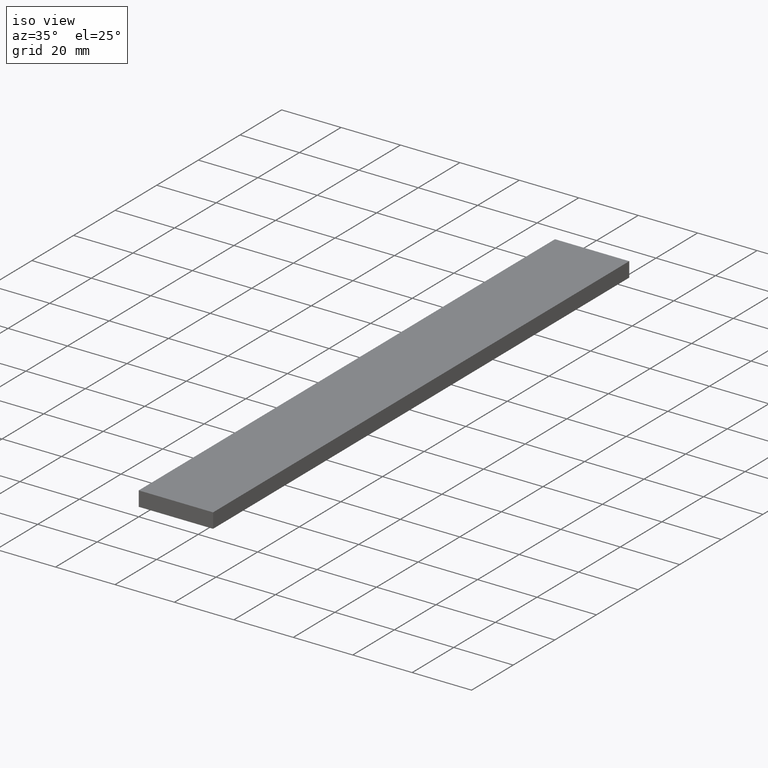
[diagram: clean part render]
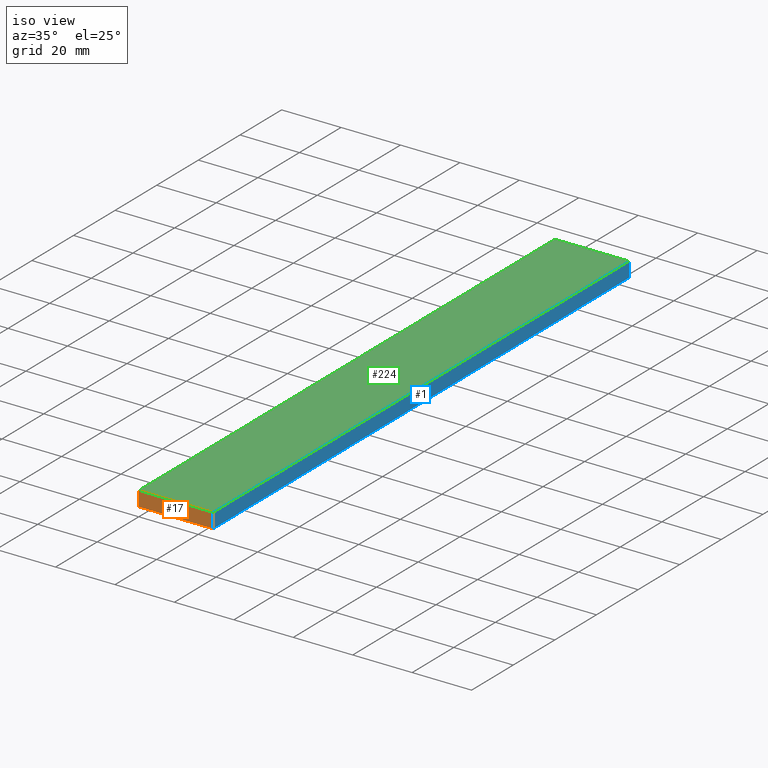
[diagram: same view with three faces highlighted in distinct colors, each labeled with its STEP entity id]
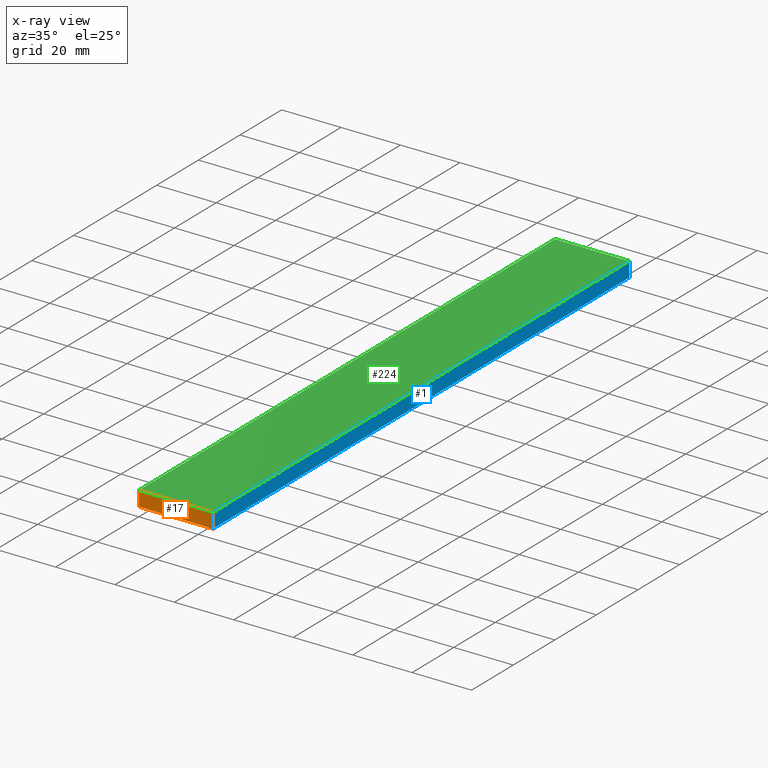
[diagram: x-ray of the same camera — body ghosted, the three highlighted faces saturated]
A machine part, iso view with three faces highlighted in distinct colors.
The next image is the same camera in x-ray (body ghosted, the three faces saturated) — at least one of them is partly hidden behind the body in this view.
Their STEP definitions:

[orange] entity #17 — the highlighted planar face has unit normal (0, 1, 0).
#3 = AXIS2_PLACEMENT_3D ( 'NONE', #53, #66, #193 ) ;
#4 = CARTESIAN_POINT ( 'NONE',  ( 0.0000000000000000000, 0.0000000000000000000, 0.0000000000000000000 ) ) ;
#9 = CARTESIAN_POINT ( 'NONE',  ( 25.00000000000000000, 0.0000000000000000000, 0.0000000000000000000 ) ) ;
#12 = ORIENTED_EDGE ( 'NONE', *, *, #167, .T. ) ;
#13 = PLANE ( 'NONE',  #3 ) ;
#17 = ADVANCED_FACE ( 'NONE', ( #237 ), #13, .F. ) ;
#28 = LINE ( 'NONE', #4, #216 ) ;
#41 = EDGE_CURVE ( 'NONE', #60, #203, #47, .T. ) ;
#47 = LINE ( 'NONE', #176, #144 ) ;
#48 = CARTESIAN_POINT ( 'NONE',  ( 0.0000000000000000000, 0.0000000000000000000, 5.000000000000000000 ) ) ;
#53 = CARTESIAN_POINT ( 'NONE',  ( 0.0000000000000000000, 0.0000000000000000000, 0.0000000000000000000 ) ) ;
#60 = VERTEX_POINT ( 'NONE', #183 ) ;
#66 = DIRECTION ( 'NONE',  ( -0.0000000000000000000, 1.000000000000000000, 0.0000000000000000000 ) ) ;
#76 = VECTOR ( 'NONE', #112, 1000.000000000000000 ) ;
#83 = DIRECTION ( 'NONE',  ( -0.0000000000000000000, -0.0000000000000000000, 1.000000000000000000 ) ) ;
#94 = VECTOR ( 'NONE', #83, 1000.000000000000000 ) ;
#98 = VERTEX_POINT ( 'NONE', #9 ) ;
#107 = ORIENTED_EDGE ( 'NONE', *, *, #178, .T. ) ;
#111 = ORIENTED_EDGE ( 'NONE', *, *, #155, .T. ) ;
#112 = DIRECTION ( 'NONE',  ( -1.000000000000000000, -0.0000000000000000000, -0.0000000000000000000 ) ) ;
#117 = EDGE_LOOP ( 'NONE', ( #111, #107, #12, #127 ) ) ;
#127 = ORIENTED_EDGE ( 'NONE', *, *, #41, .T. ) ;
#128 = DIRECTION ( 'NONE',  ( -0.0000000000000000000, -0.0000000000000000000, -1.000000000000000000 ) ) ;
#130 = CARTESIAN_POINT ( 'NONE',  ( 25.00000000000000000, 0.0000000000000000000, 0.0000000000000000000 ) ) ;
#136 = CARTESIAN_POINT ( 'NONE',  ( 25.00000000000000000, 0.0000000000000000000, 5.000000000000000000 ) ) ;
#144 = VECTOR ( 'NONE', #128, 1000.000000000000000 ) ;
#155 = EDGE_CURVE ( 'NONE', #203, #98, #28, .T. ) ;
#161 = CARTESIAN_POINT ( 'NONE',  ( 0.0000000000000000000, 0.0000000000000000000, 0.0000000000000000000 ) ) ;
#167 = EDGE_CURVE ( 'NONE', #228, #60, #221, .T. ) ;
#173 = LINE ( 'NONE', #130, #94 ) ;
#176 = CARTESIAN_POINT ( 'NONE',  ( 0.0000000000000000000, 0.0000000000000000000, 0.0000000000000000000 ) ) ;
#178 = EDGE_CURVE ( 'NONE', #98, #228, #173, .T. ) ;
#183 = CARTESIAN_POINT ( 'NONE',  ( 0.0000000000000000000, 0.0000000000000000000, 5.000000000000000000 ) ) ;
#193 = DIRECTION ( 'NONE',  ( 1.000000000000000000, 0.0000000000000000000, 0.0000000000000000000 ) ) ;
#203 = VERTEX_POINT ( 'NONE', #161 ) ;
#216 = VECTOR ( 'NONE', #230, 1000.000000000000000 ) ;
#221 = LINE ( 'NONE', #48, #76 ) ;
#228 = VERTEX_POINT ( 'NONE', #136 ) ;
#230 = DIRECTION ( 'NONE',  ( 1.000000000000000000, -0.0000000000000000000, -0.0000000000000000000 ) ) ;
#237 = FACE_OUTER_BOUND ( 'NONE', #117, .T. ) ;

[blue] entity #1 — the highlighted planar face has unit normal (1, 0, 0).
#1 = ADVANCED_FACE ( 'NONE', ( #101 ), #121, .T. ) ;
#2 = CARTESIAN_POINT ( 'NONE',  ( 25.00000000000000000, 200.0000000000000000, 0.0000000000000000000 ) ) ;
#5 = ORIENTED_EDGE ( 'NONE', *, *, #182, .T. ) ;
#8 = ORIENTED_EDGE ( 'NONE', *, *, #178, .F. ) ;
#9 = CARTESIAN_POINT ( 'NONE',  ( 25.00000000000000000, 0.0000000000000000000, 0.0000000000000000000 ) ) ;
#11 = DIRECTION ( 'NONE',  ( -0.0000000000000000000, -0.0000000000000000000, 1.000000000000000000 ) ) ;
#29 = EDGE_CURVE ( 'NONE', #218, #98, #231, .T. ) ;
#32 = ORIENTED_EDGE ( 'NONE', *, *, #29, .F. ) ;
#35 = VECTOR ( 'NONE', #11, 1000.000000000000000 ) ;
#54 = LINE ( 'NONE', #209, #35 ) ;
#64 = CARTESIAN_POINT ( 'NONE',  ( 25.00000000000000000, 1000.000000000000000, 0.0000000000000000000 ) ) ;
#65 = EDGE_CURVE ( 'NONE', #218, #142, #54, .T. ) ;
#69 = DIRECTION ( 'NONE',  ( 0.0000000000000000000, -1.000000000000000000, 0.0000000000000000000 ) ) ;
#71 = VECTOR ( 'NONE', #174, 1000.000000000000000 ) ;
#77 = EDGE_LOOP ( 'NONE', ( #8, #32, #238, #5 ) ) ;
#83 = DIRECTION ( 'NONE',  ( -0.0000000000000000000, -0.0000000000000000000, 1.000000000000000000 ) ) ;
#91 = CARTESIAN_POINT ( 'NONE',  ( 25.00000000000000000, 1000.000000000000000, 0.0000000000000000000 ) ) ;
#94 = VECTOR ( 'NONE', #83, 1000.000000000000000 ) ;
#98 = VERTEX_POINT ( 'NONE', #9 ) ;
#101 = FACE_OUTER_BOUND ( 'NONE', #77, .T. ) ;
#103 = CARTESIAN_POINT ( 'NONE',  ( 25.00000000000000000, 200.0000000000000000, 5.000000000000000000 ) ) ;
#121 = PLANE ( 'NONE',  #163 ) ;
#130 = CARTESIAN_POINT ( 'NONE',  ( 25.00000000000000000, 0.0000000000000000000, 0.0000000000000000000 ) ) ;
#136 = CARTESIAN_POINT ( 'NONE',  ( 25.00000000000000000, 0.0000000000000000000, 5.000000000000000000 ) ) ;
#141 = LINE ( 'NONE', #157, #71 ) ;
#142 = VERTEX_POINT ( 'NONE', #103 ) ;
#145 = DIRECTION ( 'NONE',  ( 0.0000000000000000000, 0.0000000000000000000, -1.000000000000000000 ) ) ;
#157 = CARTESIAN_POINT ( 'NONE',  ( 25.00000000000000000, 1000.000000000000000, 5.000000000000000000 ) ) ;
#163 = AXIS2_PLACEMENT_3D ( 'NONE', #64, #229, #145 ) ;
#173 = LINE ( 'NONE', #130, #94 ) ;
#174 = DIRECTION ( 'NONE',  ( 0.0000000000000000000, -1.000000000000000000, 0.0000000000000000000 ) ) ;
#178 = EDGE_CURVE ( 'NONE', #98, #228, #173, .T. ) ;
#182 = EDGE_CURVE ( 'NONE', #142, #228, #141, .T. ) ;
#209 = CARTESIAN_POINT ( 'NONE',  ( 25.00000000000000000, 200.0000000000000000, 0.0000000000000000000 ) ) ;
#218 = VERTEX_POINT ( 'NONE', #2 ) ;
#228 = VERTEX_POINT ( 'NONE', #136 ) ;
#229 = DIRECTION ( 'NONE',  ( 1.000000000000000000, 0.0000000000000000000, 0.0000000000000000000 ) ) ;
#231 = LINE ( 'NONE', #91, #235 ) ;
#235 = VECTOR ( 'NONE', #69, 1000.000000000000000 ) ;
#238 = ORIENTED_EDGE ( 'NONE', *, *, #65, .T. ) ;

[green] entity #224 — the highlighted planar face has unit normal (0, 0, 1).
#21 = ORIENTED_EDGE ( 'NONE', *, *, #167, .F. ) ;
#34 = CARTESIAN_POINT ( 'NONE',  ( 0.0000000000000000000, 200.0000000000000000, 5.000000000000000000 ) ) ;
#40 = VECTOR ( 'NONE', #106, 1000.000000000000000 ) ;
#43 = ORIENTED_EDGE ( 'NONE', *, *, #120, .T. ) ;
#44 = EDGE_CURVE ( 'NONE', #213, #60, #188, .T. ) ;
#48 = CARTESIAN_POINT ( 'NONE',  ( 0.0000000000000000000, 0.0000000000000000000, 5.000000000000000000 ) ) ;
#56 = DIRECTION ( 'NONE',  ( 1.000000000000000000, 0.0000000000000000000, 0.0000000000000000000 ) ) ;
#60 = VERTEX_POINT ( 'NONE', #183 ) ;
#71 = VECTOR ( 'NONE', #174, 1000.000000000000000 ) ;
#72 = ORIENTED_EDGE ( 'NONE', *, *, #182, .F. ) ;
#76 = VECTOR ( 'NONE', #112, 1000.000000000000000 ) ;
#86 = EDGE_LOOP ( 'NONE', ( #21, #72, #43, #186 ) ) ;
#103 = CARTESIAN_POINT ( 'NONE',  ( 25.00000000000000000, 200.0000000000000000, 5.000000000000000000 ) ) ;
#104 = CARTESIAN_POINT ( 'NONE',  ( 25.00000000000000000, 1000.000000000000000, 5.000000000000000000 ) ) ;
#106 = DIRECTION ( 'NONE',  ( 0.0000000000000000000, -1.000000000000000000, 0.0000000000000000000 ) ) ;
#110 = AXIS2_PLACEMENT_3D ( 'NONE', #104, #148, #56 ) ;
#112 = DIRECTION ( 'NONE',  ( -1.000000000000000000, -0.0000000000000000000, -0.0000000000000000000 ) ) ;
#115 = CARTESIAN_POINT ( 'NONE',  ( 0.0000000000000000000, 200.0000000000000000, 5.000000000000000000 ) ) ;
#120 = EDGE_CURVE ( 'NONE', #142, #213, #139, .T. ) ;
#129 = VECTOR ( 'NONE', #170, 1000.000000000000000 ) ;
#136 = CARTESIAN_POINT ( 'NONE',  ( 25.00000000000000000, 0.0000000000000000000, 5.000000000000000000 ) ) ;
#137 = FACE_OUTER_BOUND ( 'NONE', #86, .T. ) ;
#139 = LINE ( 'NONE', #115, #129 ) ;
#141 = LINE ( 'NONE', #157, #71 ) ;
#142 = VERTEX_POINT ( 'NONE', #103 ) ;
#148 = DIRECTION ( 'NONE',  ( 0.0000000000000000000, 0.0000000000000000000, 1.000000000000000000 ) ) ;
#157 = CARTESIAN_POINT ( 'NONE',  ( 25.00000000000000000, 1000.000000000000000, 5.000000000000000000 ) ) ;
#167 = EDGE_CURVE ( 'NONE', #228, #60, #221, .T. ) ;
#170 = DIRECTION ( 'NONE',  ( -1.000000000000000000, -0.0000000000000000000, -0.0000000000000000000 ) ) ;
#174 = DIRECTION ( 'NONE',  ( 0.0000000000000000000, -1.000000000000000000, 0.0000000000000000000 ) ) ;
#181 = CARTESIAN_POINT ( 'NONE',  ( 0.0000000000000000000, 1000.000000000000000, 5.000000000000000000 ) ) ;
#182 = EDGE_CURVE ( 'NONE', #142, #228, #141, .T. ) ;
#183 = CARTESIAN_POINT ( 'NONE',  ( 0.0000000000000000000, 0.0000000000000000000, 5.000000000000000000 ) ) ;
#186 = ORIENTED_EDGE ( 'NONE', *, *, #44, .T. ) ;
#188 = LINE ( 'NONE', #181, #40 ) ;
#199 = PLANE ( 'NONE',  #110 ) ;
#213 = VERTEX_POINT ( 'NONE', #34 ) ;
#221 = LINE ( 'NONE', #48, #76 ) ;
#224 = ADVANCED_FACE ( 'NONE', ( #137 ), #199, .T. ) ;
#228 = VERTEX_POINT ( 'NONE', #136 ) ;